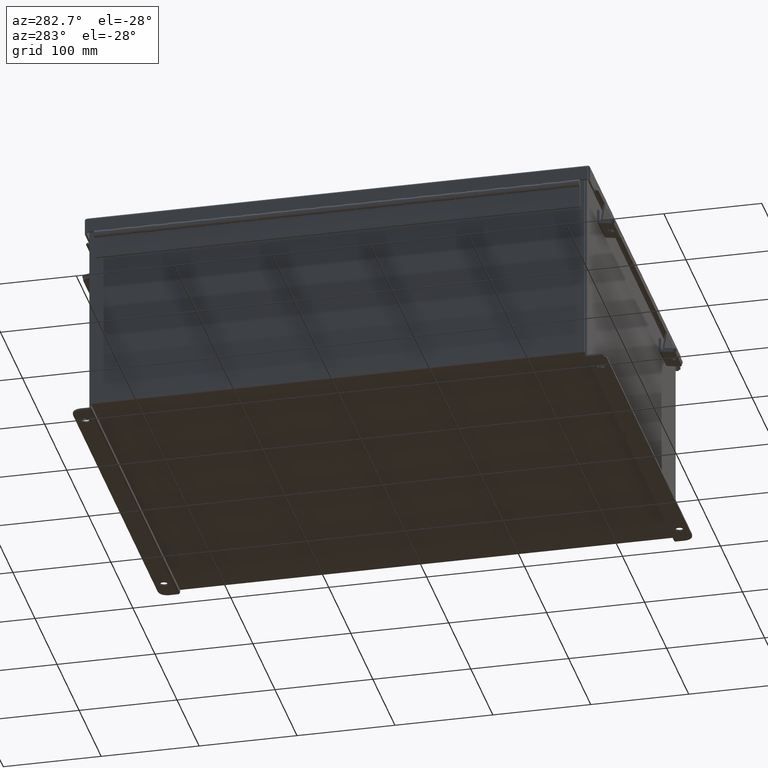
[diagram: clean part render]
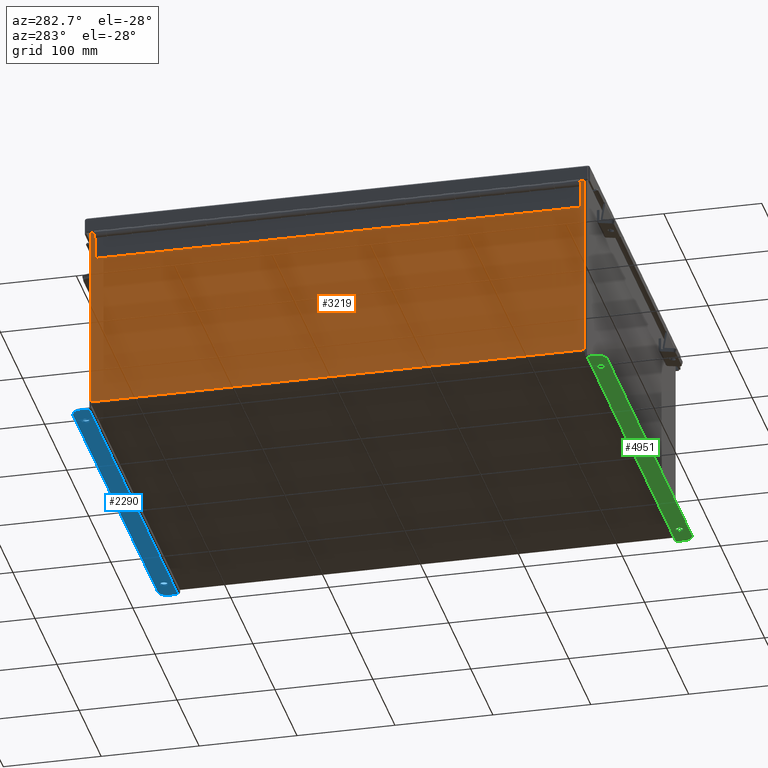
[diagram: same view with three faces highlighted in distinct colors, each labeled with its STEP entity id]
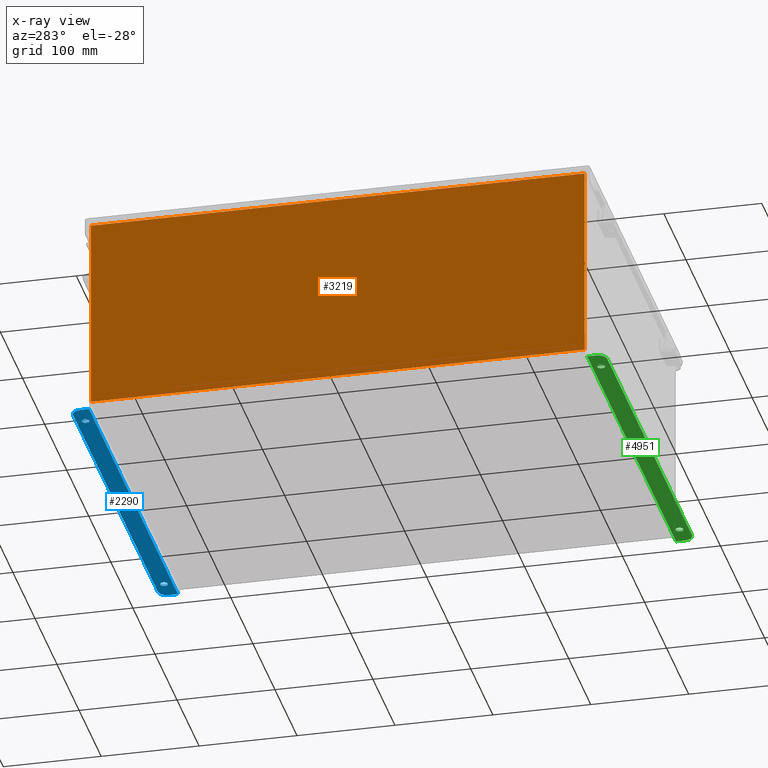
[diagram: x-ray of the same camera — body ghosted, the three highlighted faces saturated]
A machine part, auxiliary view with three faces highlighted in distinct colors.
The next image is the same camera in x-ray (body ghosted, the three faces saturated) — at least one of them is partly hidden behind the body in this view.
Their STEP definitions:

[orange] entity #3219 — the highlighted planar face has unit normal (1, 0, 0).
#256 = DIRECTION ( 'NONE',  ( -3.479795166820706300E-015, 2.783836133456565100E-016, 1.000000000000000000 ) ) ;
#584 = EDGE_CURVE ( 'NONE', #13389, #21757, #4073, .T. ) ;
#589 = CARTESIAN_POINT ( 'NONE',  ( -7.999999999999996400, 9.925299999999998200, 0.01299999999999984300 ) ) ;
#971 = DIRECTION ( 'NONE',  ( 3.479795166820705900E-015, 0.0000000000000000000, -1.000000000000000000 ) ) ;
#1397 = VECTOR ( 'NONE', #256, 39.37007874015748100 ) ;
#3219 = ADVANCED_FACE ( 'NONE', ( #7227 ), #11855, .F. ) ;
#3544 = VERTEX_POINT ( 'NONE', #5994 ) ;
#4073 = LINE ( 'NONE', #589, #21949 ) ;
#4313 = ORIENTED_EDGE ( 'NONE', *, *, #17966, .T. ) ;
#4462 = CARTESIAN_POINT ( 'NONE',  ( -7.999999999999996400, 9.925299999999998200, -2.809534920984090700E-014 ) ) ;
#4786 = ORIENTED_EDGE ( 'NONE', *, *, #584, .F. ) ;
#5994 = CARTESIAN_POINT ( 'NONE',  ( -8.000000000000023100, -9.925299999999996500, 7.837599999999999200 ) ) ;
#6397 = VECTOR ( 'NONE', #18332, 39.37007874015748100 ) ;
#6951 = EDGE_CURVE ( 'NONE', #3544, #7663, #10629, .T. ) ;
#7096 = LINE ( 'NONE', #10622, #1397 ) ;
#7181 = ORIENTED_EDGE ( 'NONE', *, *, #15258, .T. ) ;
#7227 = FACE_OUTER_BOUND ( 'NONE', #21930, .T. ) ;
#7552 = CARTESIAN_POINT ( 'NONE',  ( -7.999999999999996400, 9.925299999999998200, 0.01299999999999984300 ) ) ;
#7663 = VERTEX_POINT ( 'NONE', #19293 ) ;
#8389 = CARTESIAN_POINT ( 'NONE',  ( -7.999999999999996400, 0.0000000000000000000, -2.809534920984090700E-014 ) ) ;
#8634 = DIRECTION ( 'NONE',  ( -0.0000000000000000000, 1.000000000000000000, -0.0000000000000000000 ) ) ;
#8763 = DIRECTION ( 'NONE',  ( 0.0000000000000000000, 1.000000000000000000, 0.0000000000000000000 ) ) ;
#8898 = DIRECTION ( 'NONE',  ( 1.000000000000000000, 0.0000000000000000000, 3.479795166820705900E-015 ) ) ;
#10622 = CARTESIAN_POINT ( 'NONE',  ( -7.999999999999996400, -9.925299999999998200, -2.533789014123604100E-014 ) ) ;
#10629 = LINE ( 'NONE', #15579, #20398 ) ;
#10991 = LINE ( 'NONE', #4462, #6397 ) ;
#11131 = CARTESIAN_POINT ( 'NONE',  ( -7.999999999999996400, -9.925299999999996500, 0.01299999999999984300 ) ) ;
#11502 = ORIENTED_EDGE ( 'NONE', *, *, #6951, .T. ) ;
#11855 = PLANE ( 'NONE',  #18681 ) ;
#13389 = VERTEX_POINT ( 'NONE', #11131 ) ;
#15258 = EDGE_CURVE ( 'NONE', #7663, #21757, #10991, .T. ) ;
#15579 = CARTESIAN_POINT ( 'NONE',  ( -8.000000000000023100, -9.925299999999998200, 7.837599999999999200 ) ) ;
#17966 = EDGE_CURVE ( 'NONE', #13389, #3544, #7096, .T. ) ;
#18332 = DIRECTION ( 'NONE',  ( 3.479795166820706300E-015, 0.0000000000000000000, -1.000000000000000000 ) ) ;
#18681 = AXIS2_PLACEMENT_3D ( 'NONE', #8389, #8898, #971 ) ;
#19293 = CARTESIAN_POINT ( 'NONE',  ( -8.000000000000023100, 9.925299999999998200, 7.837599999999999200 ) ) ;
#20398 = VECTOR ( 'NONE', #8763, 39.37007874015748100 ) ;
#21757 = VERTEX_POINT ( 'NONE', #7552 ) ;
#21930 = EDGE_LOOP ( 'NONE', ( #11502, #7181, #4786, #4313 ) ) ;
#21949 = VECTOR ( 'NONE', #8634, 39.37007874015748100 ) ;

[blue] entity #2290 — the highlighted planar face has unit normal (0, 0, 1).
#275 = EDGE_CURVE ( 'NONE', #12298, #20197, #13565, .T. ) ;
#1254 = VECTOR ( 'NONE', #14971, 39.37007874015748100 ) ;
#1499 = CARTESIAN_POINT ( 'NONE',  ( 0.0000000000000000000, 0.7377999999999989000, -4.187000000000002900 ) ) ;
#1537 = LINE ( 'NONE', #7042, #19385 ) ;
#1776 = CARTESIAN_POINT ( 'NONE',  ( -6.987799999999999100, 0.3628000000000008400, -4.187000000000001200 ) ) ;
#1841 = CARTESIAN_POINT ( 'NONE',  ( -6.987799999999999100, 0.5188000000000010400, -4.187000000000002100 ) ) ;
#1907 = CARTESIAN_POINT ( 'NONE',  ( 6.987800000000000900, 0.2068000000000006800, -4.187000000000001200 ) ) ;
#2174 = DIRECTION ( 'NONE',  ( 1.000000000000000000, 0.0000000000000000000, -0.0000000000000000000 ) ) ;
#2290 = ADVANCED_FACE ( 'NONE', ( #4266, #3748, #17007 ), #16504, .F. ) ;
#2363 = DIRECTION ( 'NONE',  ( -0.0000000000000000000, -3.702694488566362300E-015, -1.000000000000000000 ) ) ;
#2820 = ORIENTED_EDGE ( 'NONE', *, *, #3411, .F. ) ;
#2946 = EDGE_CURVE ( 'NONE', #20197, #12298, #17244, .T. ) ;
#2973 = ORIENTED_EDGE ( 'NONE', *, *, #6543, .T. ) ;
#3411 = EDGE_CURVE ( 'NONE', #6056, #4800, #8032, .T. ) ;
#3748 = FACE_BOUND ( 'NONE', #9091, .T. ) ;
#4200 = VECTOR ( 'NONE', #4479, 39.37007874015748100 ) ;
#4266 = FACE_BOUND ( 'NONE', #10073, .T. ) ;
#4479 = DIRECTION ( 'NONE',  ( 0.0000000000000000000, 1.000000000000000000, -3.702694488566362300E-015 ) ) ;
#4608 = CARTESIAN_POINT ( 'NONE',  ( 7.925300000000000900, 0.01300000000000010700, -4.187000000000000300 ) ) ;
#4777 = CIRCLE ( 'NONE', #19796, 0.3750000000000000600 ) ;
#4800 = VERTEX_POINT ( 'NONE', #21422 ) ;
#5174 = VERTEX_POINT ( 'NONE', #15583 ) ;
#6056 = VERTEX_POINT ( 'NONE', #1841 ) ;
#6543 = EDGE_CURVE ( 'NONE', #17651, #5174, #22296, .T. ) ;
#6576 = DIRECTION ( 'NONE',  ( -0.0000000000000000000, -3.702694488566362300E-015, -1.000000000000000000 ) ) ;
#6591 = CARTESIAN_POINT ( 'NONE',  ( -6.987799999999999100, 0.3628000000000008400, -4.187000000000001200 ) ) ;
#6686 = AXIS2_PLACEMENT_3D ( 'NONE', #1776, #8727, #11667 ) ;
#6981 = ORIENTED_EDGE ( 'NONE', *, *, #14072, .F. ) ;
#7042 = CARTESIAN_POINT ( 'NONE',  ( 7.925300000000000900, -1.529834876451987200E-014, -4.187000000000000300 ) ) ;
#7164 = DIRECTION ( 'NONE',  ( 0.0000000000000000000, 1.000000000000000000, -3.502369222646487000E-015 ) ) ;
#7386 = EDGE_LOOP ( 'NONE', ( #2973, #9229, #21988, #20083, #14153, #10014 ) ) ;
#7907 = AXIS2_PLACEMENT_3D ( 'NONE', #13764, #12098, #7164 ) ;
#8032 = CIRCLE ( 'NONE', #6686, 0.1560000000000001900 ) ;
#8294 = LINE ( 'NONE', #14833, #4200 ) ;
#8337 = DIRECTION ( 'NONE',  ( 0.0000000000000000000, 1.000000000000000000, -3.502369222646487000E-015 ) ) ;
#8727 = DIRECTION ( 'NONE',  ( 0.0000000000000000000, -3.702694488566362300E-015, -1.000000000000000000 ) ) ;
#8822 = VERTEX_POINT ( 'NONE', #9103 ) ;
#9091 = EDGE_LOOP ( 'NONE', ( #18778, #18151 ) ) ;
#9103 = CARTESIAN_POINT ( 'NONE',  ( 7.925300000000000900, 0.3628000000000008400, -4.187000000000001200 ) ) ;
#9229 = ORIENTED_EDGE ( 'NONE', *, *, #11872, .T. ) ;
#9477 = DIRECTION ( 'NONE',  ( 0.0000000000000000000, 3.702694488566362300E-015, 1.000000000000000000 ) ) ;
#10014 = ORIENTED_EDGE ( 'NONE', *, *, #12907, .T. ) ;
#10073 = EDGE_LOOP ( 'NONE', ( #2820, #6981 ) ) ;
#11667 = DIRECTION ( 'NONE',  ( 0.0000000000000000000, 1.000000000000000000, -3.502369222646487000E-015 ) ) ;
#11872 = EDGE_CURVE ( 'NONE', #5174, #8822, #4777, .T. ) ;
#12098 = DIRECTION ( 'NONE',  ( 0.0000000000000000000, -3.702694488566362300E-015, -1.000000000000000000 ) ) ;
#12298 = VERTEX_POINT ( 'NONE', #17957 ) ;
#12299 = VERTEX_POINT ( 'NONE', #16214 ) ;
#12437 = EDGE_CURVE ( 'NONE', #19117, #12299, #8294, .T. ) ;
#12696 = CARTESIAN_POINT ( 'NONE',  ( -7.550299999999998200, 0.3628000000000008400, -4.187000000000001200 ) ) ;
#12907 = EDGE_CURVE ( 'NONE', #12299, #17651, #13383, .T. ) ;
#13065 = VECTOR ( 'NONE', #2174, 39.37007874015748100 ) ;
#13153 = DIRECTION ( 'NONE',  ( 0.0000000000000000000, 1.000000000000000000, -3.502369222646487000E-015 ) ) ;
#13383 = CIRCLE ( 'NONE', #13431, 0.3750000000000000600 ) ;
#13431 = AXIS2_PLACEMENT_3D ( 'NONE', #12696, #2363, #14436 ) ;
#13565 = CIRCLE ( 'NONE', #15676, 0.1560000000000001900 ) ;
#13764 = CARTESIAN_POINT ( 'NONE',  ( 6.987800000000000900, 0.3628000000000008400, -4.187000000000001200 ) ) ;
#13982 = CIRCLE ( 'NONE', #20981, 0.1560000000000001900 ) ;
#14072 = EDGE_CURVE ( 'NONE', #4800, #6056, #13982, .T. ) ;
#14153 = ORIENTED_EDGE ( 'NONE', *, *, #12437, .T. ) ;
#14183 = VERTEX_POINT ( 'NONE', #15399 ) ;
#14289 = EDGE_CURVE ( 'NONE', #8822, #14183, #1537, .T. ) ;
#14436 = DIRECTION ( 'NONE',  ( 0.0000000000000000000, -1.000000000000000000, 4.370956789862820400E-015 ) ) ;
#14833 = CARTESIAN_POINT ( 'NONE',  ( -7.925299999999998200, -1.529834876451987200E-014, -4.187000000000000300 ) ) ;
#14971 = DIRECTION ( 'NONE',  ( 1.000000000000000000, 3.446996320220387800E-017, -1.276317427698856100E-031 ) ) ;
#14984 = DIRECTION ( 'NONE',  ( 0.0000000000000000000, -1.000000000000000000, 3.702694488566362300E-015 ) ) ;
#15037 = LINE ( 'NONE', #4608, #1254 ) ;
#15318 = EDGE_CURVE ( 'NONE', #19117, #14183, #15037, .T. ) ;
#15399 = CARTESIAN_POINT ( 'NONE',  ( 7.925300000000000900, 0.01300000000000010700, -4.187000000000000300 ) ) ;
#15583 = CARTESIAN_POINT ( 'NONE',  ( 7.550300000000000900, 0.7377999999999989000, -4.187000000000002900 ) ) ;
#15676 = AXIS2_PLACEMENT_3D ( 'NONE', #17466, #18091, #13153 ) ;
#16214 = CARTESIAN_POINT ( 'NONE',  ( -7.925299999999998200, 0.3628000000000008400, -4.187000000000001200 ) ) ;
#16504 = PLANE ( 'NONE',  #21952 ) ;
#16920 = CARTESIAN_POINT ( 'NONE',  ( 7.550300000000000900, 0.3628000000000008400, -4.187000000000001200 ) ) ;
#17007 = FACE_OUTER_BOUND ( 'NONE', #7386, .T. ) ;
#17244 = CIRCLE ( 'NONE', #7907, 0.1560000000000001900 ) ;
#17373 = DIRECTION ( 'NONE',  ( 0.0000000000000000000, -1.000000000000000000, 3.702694488566362300E-015 ) ) ;
#17466 = CARTESIAN_POINT ( 'NONE',  ( 6.987800000000000900, 0.3628000000000008400, -4.187000000000001200 ) ) ;
#17651 = VERTEX_POINT ( 'NONE', #19642 ) ;
#17957 = CARTESIAN_POINT ( 'NONE',  ( 6.987800000000000900, 0.5188000000000010400, -4.187000000000002100 ) ) ;
#18091 = DIRECTION ( 'NONE',  ( 0.0000000000000000000, -3.702694488566362300E-015, -1.000000000000000000 ) ) ;
#18151 = ORIENTED_EDGE ( 'NONE', *, *, #2946, .F. ) ;
#18661 = DIRECTION ( 'NONE',  ( 0.0000000000000000000, -1.000000000000000000, 4.370956789862820400E-015 ) ) ;
#18671 = DIRECTION ( 'NONE',  ( 0.0000000000000000000, -3.702694488566362300E-015, -1.000000000000000000 ) ) ;
#18778 = ORIENTED_EDGE ( 'NONE', *, *, #275, .F. ) ;
#19117 = VERTEX_POINT ( 'NONE', #19496 ) ;
#19385 = VECTOR ( 'NONE', #17373, 39.37007874015748100 ) ;
#19496 = CARTESIAN_POINT ( 'NONE',  ( -7.925299999999998200, 0.01300000000000010700, -4.187000000000000300 ) ) ;
#19642 = CARTESIAN_POINT ( 'NONE',  ( -7.550299999999998200, 0.7377999999999989000, -4.187000000000002900 ) ) ;
#19796 = AXIS2_PLACEMENT_3D ( 'NONE', #16920, #6576, #18661 ) ;
#20083 = ORIENTED_EDGE ( 'NONE', *, *, #15318, .F. ) ;
#20197 = VERTEX_POINT ( 'NONE', #1907 ) ;
#20981 = AXIS2_PLACEMENT_3D ( 'NONE', #6591, #18671, #8337 ) ;
#21422 = CARTESIAN_POINT ( 'NONE',  ( -6.987799999999999100, 0.2068000000000006800, -4.187000000000001200 ) ) ;
#21427 = CARTESIAN_POINT ( 'NONE',  ( 0.0000000000000000000, -1.529834876451987200E-014, -4.187000000000000300 ) ) ;
#21952 = AXIS2_PLACEMENT_3D ( 'NONE', #21427, #9477, #14984 ) ;
#21988 = ORIENTED_EDGE ( 'NONE', *, *, #14289, .T. ) ;
#22296 = LINE ( 'NONE', #1499, #13065 ) ;

[green] entity #4951 — the highlighted planar face has unit normal (0, -0, 1).
#3 = EDGE_CURVE ( 'NONE', #13108, #8229, #17897, .T. ) ;
#76 = CIRCLE ( 'NONE', #6719, 0.3750000000000000600 ) ;
#216 = VERTEX_POINT ( 'NONE', #11211 ) ;
#387 = EDGE_LOOP ( 'NONE', ( #14989, #13602, #3920, #1698, #13932, #11159 ) ) ;
#441 = DIRECTION ( 'NONE',  ( 0.0000000000000000000, -3.362274453740631800E-015, -1.000000000000000000 ) ) ;
#615 = AXIS2_PLACEMENT_3D ( 'NONE', #19438, #11958, #13381 ) ;
#661 = EDGE_CURVE ( 'NONE', #12454, #216, #20847, .T. ) ;
#743 = DIRECTION ( 'NONE',  ( 1.000000000000000000, 4.910036603141682400E-031, 0.0000000000000000000 ) ) ;
#902 = CIRCLE ( 'NONE', #8880, 0.1560000000000001900 ) ;
#1195 = FACE_BOUND ( 'NONE', #13716, .T. ) ;
#1221 = CARTESIAN_POINT ( 'NONE',  ( -2.035385365534024800E-024, 0.7378000000000011200, -4.187000000000002900 ) ) ;
#1698 = ORIENTED_EDGE ( 'NONE', *, *, #5453, .T. ) ;
#1764 = DIRECTION ( 'NONE',  ( 0.0000000000000000000, -3.362274453740631800E-015, -1.000000000000000000 ) ) ;
#2016 = VERTEX_POINT ( 'NONE', #17644 ) ;
#2523 = ORIENTED_EDGE ( 'NONE', *, *, #3, .F. ) ;
#3334 = EDGE_LOOP ( 'NONE', ( #2523, #19434 ) ) ;
#3920 = ORIENTED_EDGE ( 'NONE', *, *, #661, .T. ) ;
#4146 = VECTOR ( 'NONE', #8047, 39.37007874015748100 ) ;
#4333 = CARTESIAN_POINT ( 'NONE',  ( -7.925299999999998200, -1.529834876451987200E-014, -4.187000000000000300 ) ) ;
#4951 = ADVANCED_FACE ( 'NONE', ( #1195, #9836, #19059 ), #16556, .F. ) ;
#5008 = VERTEX_POINT ( 'NONE', #21866 ) ;
#5022 = EDGE_CURVE ( 'NONE', #15902, #2016, #17951, .T. ) ;
#5453 = EDGE_CURVE ( 'NONE', #216, #7950, #76, .T. ) ;
#6148 = CARTESIAN_POINT ( 'NONE',  ( 6.987799999999999100, 0.5188000000000163600, -4.187000000000001200 ) ) ;
#6719 = AXIS2_PLACEMENT_3D ( 'NONE', #9140, #9278, #8214 ) ;
#7244 = CARTESIAN_POINT ( 'NONE',  ( -7.550299999999999100, 0.3628000000000008400, -4.187000000000001200 ) ) ;
#7641 = AXIS2_PLACEMENT_3D ( 'NONE', #19056, #8687, #20786 ) ;
#7689 = VECTOR ( 'NONE', #19666, 39.37007874015748100 ) ;
#7950 = VERTEX_POINT ( 'NONE', #13278 ) ;
#7987 = CARTESIAN_POINT ( 'NONE',  ( -7.550299999999999100, 0.7377999999999989000, -4.187000000000002900 ) ) ;
#8047 = DIRECTION ( 'NONE',  ( 4.919856193148104900E-031, 1.000000000000000000, -3.702694488566362300E-015 ) ) ;
#8214 = DIRECTION ( 'NONE',  ( 0.0000000000000000000, -1.000000000000000000, 4.370956789862820400E-015 ) ) ;
#8229 = VERTEX_POINT ( 'NONE', #9580 ) ;
#8687 = DIRECTION ( 'NONE',  ( 0.0000000000000000000, -3.362274453740631800E-015, -1.000000000000000000 ) ) ;
#8880 = AXIS2_PLACEMENT_3D ( 'NONE', #12115, #1764, #13844 ) ;
#8976 = DIRECTION ( 'NONE',  ( 0.0000000000000000000, -1.000000000000000000, 4.370956789862820400E-015 ) ) ;
#9140 = CARTESIAN_POINT ( 'NONE',  ( 7.550299999999999100, 0.3628000000000161700, -4.187000000000001200 ) ) ;
#9278 = DIRECTION ( 'NONE',  ( -0.0000000000000000000, -3.702694488566362300E-015, -1.000000000000000000 ) ) ;
#9580 = CARTESIAN_POINT ( 'NONE',  ( 6.987799999999999100, 0.2068000000000159700, -4.187000000000000300 ) ) ;
#9836 = FACE_BOUND ( 'NONE', #3334, .T. ) ;
#10539 = VERTEX_POINT ( 'NONE', #22416 ) ;
#10801 = CARTESIAN_POINT ( 'NONE',  ( -6.987800000000000900, 0.3628000000000008400, -4.187000000000001200 ) ) ;
#11152 = ORIENTED_EDGE ( 'NONE', *, *, #17050, .F. ) ;
#11159 = ORIENTED_EDGE ( 'NONE', *, *, #14722, .F. ) ;
#11211 = CARTESIAN_POINT ( 'NONE',  ( 7.550299999999999100, 0.7378000000000163300, -4.187000000000002900 ) ) ;
#11249 = VECTOR ( 'NONE', #13423, 39.37007874015748100 ) ;
#11685 = CARTESIAN_POINT ( 'NONE',  ( 7.925300000000000000, 0.01300000000001759100, -4.187000000000000300 ) ) ;
#11958 = DIRECTION ( 'NONE',  ( 0.0000000000000000000, -3.362274453740631800E-015, -1.000000000000000000 ) ) ;
#12115 = CARTESIAN_POINT ( 'NONE',  ( -6.987800000000000900, 0.3628000000000008400, -4.187000000000001200 ) ) ;
#12128 = EDGE_CURVE ( 'NONE', #2016, #12454, #22379, .T. ) ;
#12185 = AXIS2_PLACEMENT_3D ( 'NONE', #16937, #18838, #20004 ) ;
#12199 = VECTOR ( 'NONE', #743, 39.37007874015748100 ) ;
#12454 = VERTEX_POINT ( 'NONE', #7987 ) ;
#12522 = DIRECTION ( 'NONE',  ( 0.0000000000000000000, 1.000000000000000000, -3.502369222646487000E-015 ) ) ;
#13108 = VERTEX_POINT ( 'NONE', #6148 ) ;
#13278 = CARTESIAN_POINT ( 'NONE',  ( 7.925300000000000000, 0.3628000000000161700, -4.187000000000001200 ) ) ;
#13381 = DIRECTION ( 'NONE',  ( 0.0000000000000000000, 1.000000000000000000, -3.502369222646487000E-015 ) ) ;
#13423 = DIRECTION ( 'NONE',  ( 1.000000000000000000, 3.446996320220427900E-017, -0.0000000000000000000 ) ) ;
#13602 = ORIENTED_EDGE ( 'NONE', *, *, #12128, .T. ) ;
#13716 = EDGE_LOOP ( 'NONE', ( #15013, #11152 ) ) ;
#13844 = DIRECTION ( 'NONE',  ( 0.0000000000000000000, 1.000000000000000000, -3.502369222646487000E-015 ) ) ;
#13932 = ORIENTED_EDGE ( 'NONE', *, *, #21755, .T. ) ;
#14705 = AXIS2_PLACEMENT_3D ( 'NONE', #7244, #19331, #8976 ) ;
#14722 = EDGE_CURVE ( 'NONE', #15902, #5008, #20982, .T. ) ;
#14989 = ORIENTED_EDGE ( 'NONE', *, *, #5022, .T. ) ;
#15013 = ORIENTED_EDGE ( 'NONE', *, *, #19077, .F. ) ;
#15902 = VERTEX_POINT ( 'NONE', #16547 ) ;
#16547 = CARTESIAN_POINT ( 'NONE',  ( -7.925300000000000000, 0.01300000000000010700, -4.187000000000000300 ) ) ;
#16556 = PLANE ( 'NONE',  #12185 ) ;
#16937 = CARTESIAN_POINT ( 'NONE',  ( -2.035385365534024800E-024, -1.529834876451987200E-014, -4.187000000000000300 ) ) ;
#17050 = EDGE_CURVE ( 'NONE', #21663, #10539, #902, .T. ) ;
#17592 = CIRCLE ( 'NONE', #21079, 0.1560000000000001900 ) ;
#17644 = CARTESIAN_POINT ( 'NONE',  ( -7.925299999999998200, 0.3628000000000008400, -4.187000000000005600 ) ) ;
#17897 = CIRCLE ( 'NONE', #615, 0.1560000000000001900 ) ;
#17906 = CARTESIAN_POINT ( 'NONE',  ( 7.925300000000000000, 2.185478394931410600E-015, -4.187000000000000300 ) ) ;
#17951 = LINE ( 'NONE', #4333, #4146 ) ;
#18838 = DIRECTION ( 'NONE',  ( 0.0000000000000000000, 3.702694488566362300E-015, 1.000000000000000000 ) ) ;
#19056 = CARTESIAN_POINT ( 'NONE',  ( 6.987799999999999100, 0.3628000000000161700, -4.187000000000001200 ) ) ;
#19059 = FACE_OUTER_BOUND ( 'NONE', #387, .T. ) ;
#19077 = EDGE_CURVE ( 'NONE', #10539, #21663, #17592, .T. ) ;
#19331 = DIRECTION ( 'NONE',  ( -0.0000000000000000000, -3.702694488566362300E-015, -1.000000000000000000 ) ) ;
#19434 = ORIENTED_EDGE ( 'NONE', *, *, #20820, .F. ) ;
#19438 = CARTESIAN_POINT ( 'NONE',  ( 6.987799999999999100, 0.3628000000000161700, -4.187000000000001200 ) ) ;
#19441 = CARTESIAN_POINT ( 'NONE',  ( -6.987800000000000900, 0.2068000000000006800, -4.187000000000000300 ) ) ;
#19666 = DIRECTION ( 'NONE',  ( -4.919856193148104900E-031, -1.000000000000000000, 3.702694488566362300E-015 ) ) ;
#20004 = DIRECTION ( 'NONE',  ( -4.919856193148104900E-031, -1.000000000000000000, 3.702694488566362300E-015 ) ) ;
#20786 = DIRECTION ( 'NONE',  ( 0.0000000000000000000, 1.000000000000000000, -3.502369222646487000E-015 ) ) ;
#20820 = EDGE_CURVE ( 'NONE', #8229, #13108, #22087, .T. ) ;
#20847 = LINE ( 'NONE', #1221, #12199 ) ;
#20982 = LINE ( 'NONE', #11685, #11249 ) ;
#21079 = AXIS2_PLACEMENT_3D ( 'NONE', #10801, #441, #12522 ) ;
#21486 = LINE ( 'NONE', #17906, #7689 ) ;
#21663 = VERTEX_POINT ( 'NONE', #19441 ) ;
#21755 = EDGE_CURVE ( 'NONE', #7950, #5008, #21486, .T. ) ;
#21866 = CARTESIAN_POINT ( 'NONE',  ( 7.925300000000000000, 0.01300000000001759100, -4.187000000000000300 ) ) ;
#22087 = CIRCLE ( 'NONE', #7641, 0.1560000000000001900 ) ;
#22379 = CIRCLE ( 'NONE', #14705, 0.3750000000000000600 ) ;
#22416 = CARTESIAN_POINT ( 'NONE',  ( -6.987800000000000900, 0.5188000000000010400, -4.187000000000001200 ) ) ;